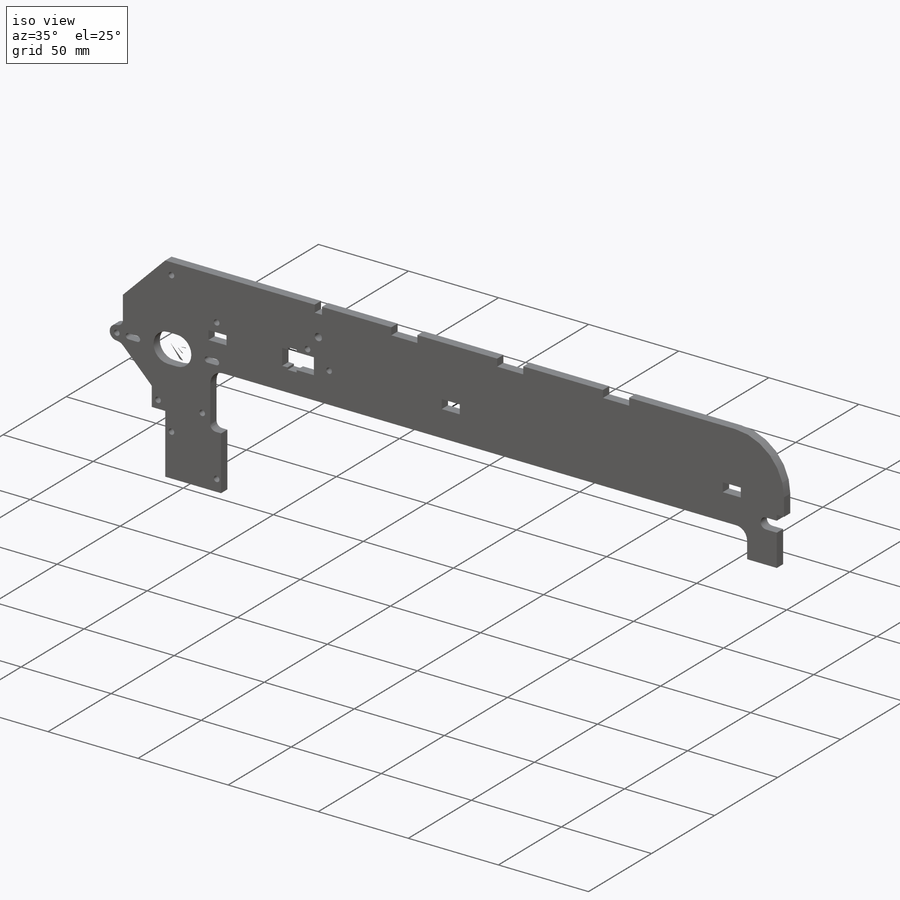
[diagram: iso view]
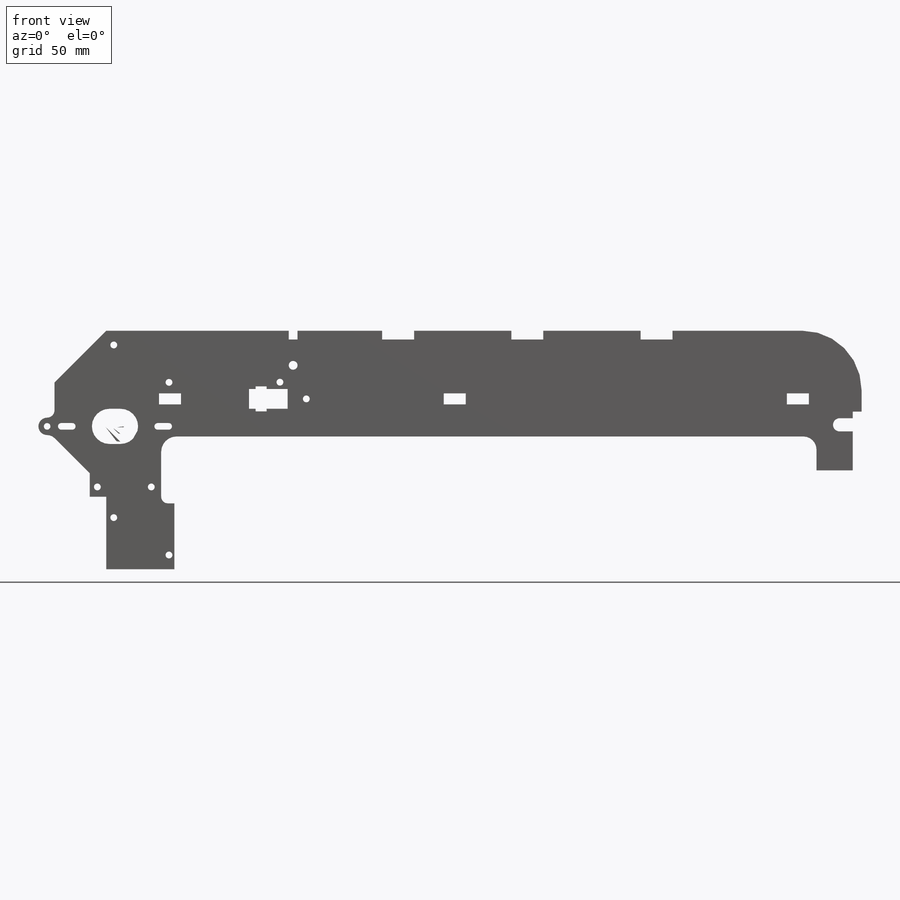
[diagram: front view]
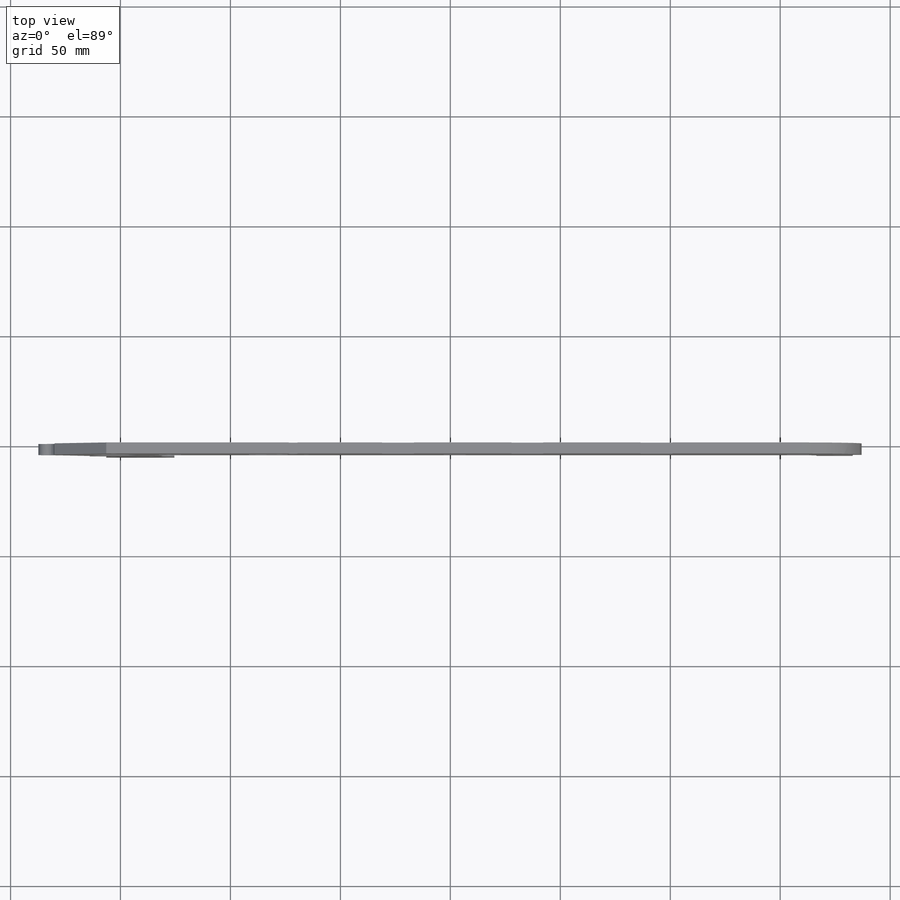
[diagram: top view]
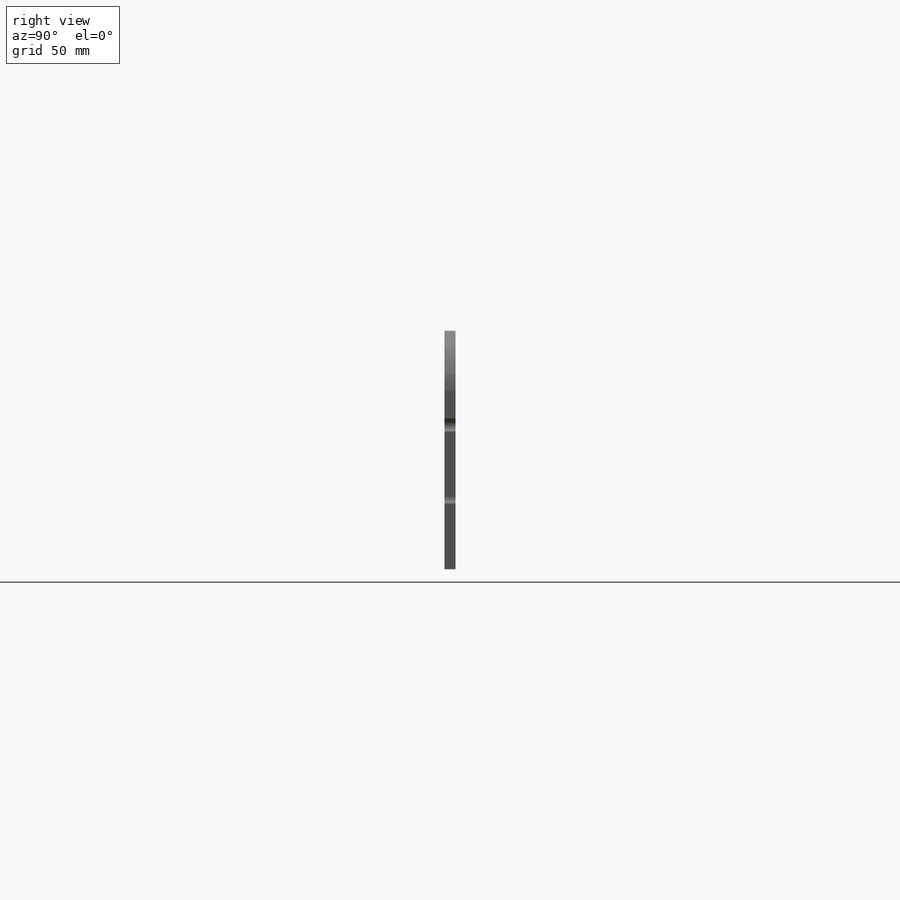
[diagram: right view]
SOLIDWORKS PART (.sldprt)
format: sldprt  version: not decoded by parser v0  size: 496,640 bytes
history: native  units: mm
features: fillet x5, sketch x3, cut_extrude x2, material x1, extrude x1 (+13 scaffold rows collapsed)
feature tree (25):
  scaffold x13  (default folders/planes/origin — collapsed)
  material  "6061-T6 Black anodised"
  sketch  "Sketch1"  dims[c1.D1=42.0mm c1.D2=31.0mm c1.D3=3.0mm c1.D4=11.0mm c1.D12=16.0mm c1.D20=3.1mm c1.D22=3.1mm c1.D25=3.0mm c1.D28=3.0mm c1.D32=10.0mm c1.D38=3.0mm c1.D14=3.0mm c1.D41=3.1mm c1.D44=3.1mm c1.D45=3.1mm c1.D53=3.1mm c1.D18=3.1mm c2.D53=5.5mm c2.D57=3.1mm c2.D69=4.0mm c2.D65=0.5mm c2.D4=4.0mm c2.D7=4.0mm c2.D11=4.0mm c2.D17=4.0mm c2.D8=4.0mm c3.D17=4.0mm c3.D9=4.0mm c3.D5=7.5mm c3.D6=4.6mm c3.D10=6.5mm c3.D7=250.0mm c3.D11=16.5mm c3.D13=15.0mm c3.D14=15.0mm c3.D15=1.5mm c4.D13=35.0mm c4.D16=15.0mm c4.D5=16.5mm c4.D8=65.0mm c5.D13=23.5mm c5.D16=20.0mm c5.D17=30.0mm c5.D18=23.5mm c5.D9=43.5mm c6.D13=23.5mm c6.D19=30.0mm c6.D21=9.0mm c6.D22=8.0mm c6.D23=21.1mm c6.D24=15.4mm c6.D26=6.0mm c6.D27=4.0mm c6.D28=6.0mm c6.D29=6.0mm c6.D30=17.5mm c6.D31=13.0mm c6.D32=41.1mm c6.D33=5.0mm c6.D34=10.0mm c6.D35=24.0mm c6.D36=180.0mm c6.D37=46.0mm c7.D29=67.0mm c7.D31=40.0mm c7.D39=29.0mm c7.D5=5.0mm c7.D7=9.0mm c8.D5=9.5mm c8.D13=337.0mm c8.D14=20.0mm c8.D15=23.0mm c8.D37=22.0mm c8.D39=5.0mm c8.D40=12.0mm c8.D42=11.0mm c8.D43=6.0mm c8.D45=13.0mm c8.D44=56.5mm c8.D46=13.0mm c8.D47=8.0mm c8.D48=11.0mm c8.D49=4.0mm c8.D50=5.0mm c8.D51=11.0mm c8.D52=25.0mm c8.D53=3.6mm c8.D54=2.5mm c8.D55=6.6mm c9.D53=7.0mm c9.D56=0.5mm c9.D57=4.5mm c9.D47=8.0mm c9.D58=6.1mm c9.D59=3.0mm c9.D60=9.0mm c9.D46=3.1mm c10.D47=9.0mm c10.D49=11.5mm c10.D44=9.0mm c11.D49=0.7mm c11.D51=12.0mm c11.D52=3.5mm c11.D16=25.0mm c11.D14=31.0mm c11.D17=15.0mm c11.D54=26.16mm c11.D55=12.0mm c11.D56=20.0mm c11.D58=4.5mm c11.D18=7.5mm c11.D53=6.0mm c12.D54=4.0mm c12.D48=15.0mm c12.D61=30.0mm c12.D62=12.5mm c12.D63=53.0mm c12.D64=14.5mm c12.D65=5.0mm c13.D65=90.0deg c13.D63=52.0mm c14.D65=53.0mm c15.D65=90.0deg c16.D65=0.2mm c16.D66=1.0mm c16.D68=4.0mm c16.D70=6.0mm c17.D65=58.75mm c17.D71=2.0mm c17.D63=1.0mm c17.D64=14.5mm c17.D72=58.75mm c18.D63=52.0mm c18.D5=19.0mm c18.D67=3.0]
  extrude  "Boss-Extrude1"  Depth=5mm
  fillet  "Fillet1"  Radius=8mm
  fillet  "Fillet2"  Radius=7mm
  fillet  "Fillet3"  Radius=3mm
  sketch  "Sketch2"  dims[D1=5.0mm]
  cut_extrude  "Cut-Extrude1"  [1 undecoded]
  fillet  "Fillet4"  Radius=6mm
  sketch  "Sketch3"  dims[D1=1.5mm D2=1.5mm D3=5.0mm]
  cut_extrude  "Cut-Extrude2"  [1 undecoded]
  fillet  "Fillet5"  Radius=0.5mm
decode coverage: 9 of 11 modeling features carry decoded parameters
note: 2 parameter values undecoded
note: suppression state not decoded; provenance and decode notes live in map.json
